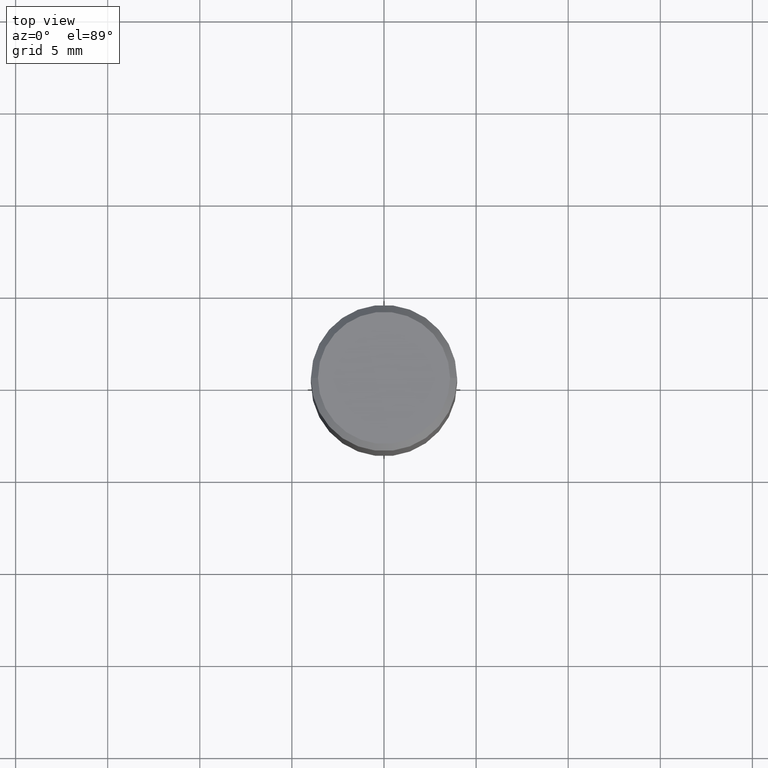
[diagram: clean part render]
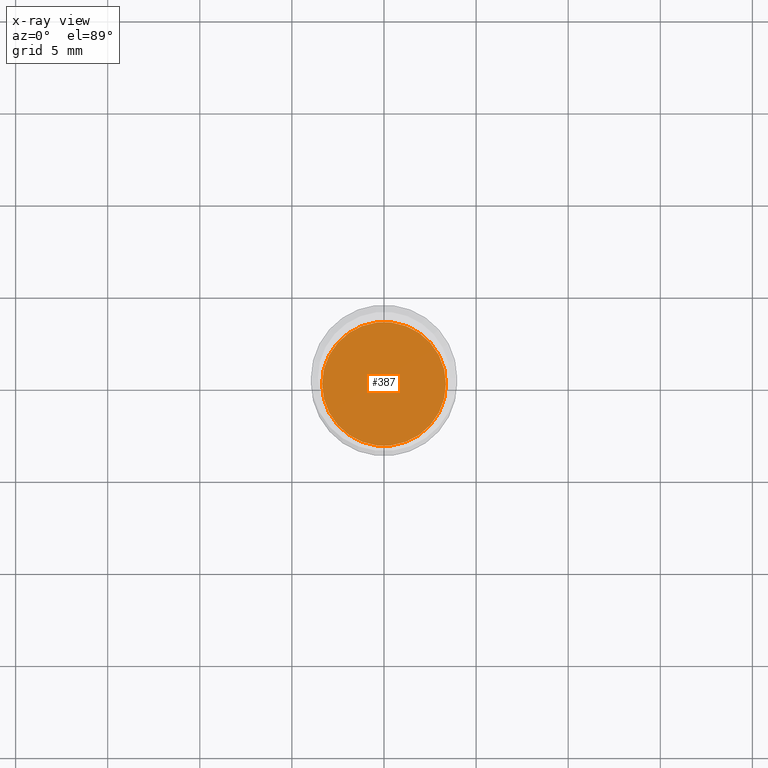
[diagram: x-ray — body ghosted, one internal face saturated and labeled with its STEP entity id]
A machine part, top view, then the same camera in x-ray: the body is ghosted and one INTERNAL B-rep face — a face not visible from any outside direction — is saturated and labeled: STEP entity #387.
In plain terms, the highlighted planar face has unit normal (-0, 0, 1).
Its self-contained STEP definition (entity closure, byte-faithful):
#38 = DIRECTION ( 'NONE',  ( -2.438088387897960049E-29, 3.491481338843145188E-15, 1.000000000000000000 ) ) ;
#42 = CARTESIAN_POINT ( 'NONE',  ( 0.1323000000000000009, -3.542456966390252304E-15, -0.7500000000000001110 ) ) ;
#55 = CIRCLE ( 'NONE', #241, 0.1323000000000000009 ) ;
#82 = VERTEX_POINT ( 'NONE', #164 ) ;
#109 = FACE_OUTER_BOUND ( 'NONE', #182, .T. ) ;
#119 = EDGE_CURVE ( 'NONE', #461, #82, #392, .T. ) ;
#151 = ORIENTED_EDGE ( 'NONE', *, *, #119, .F. ) ;
#164 = CARTESIAN_POINT ( 'NONE',  ( -0.1323000000000000009, -1.675913737547635335E-15, -0.7500000000000001110 ) ) ;
#168 = EDGE_CURVE ( 'NONE', #82, #461, #55, .T. ) ;
#182 = EDGE_LOOP ( 'NONE', ( #151, #436 ) ) ;
#184 = DIRECTION ( 'NONE',  ( 1.000000000000000000, -6.982962677686265922E-15, 4.876176775795935793E-29 ) ) ;
#200 = DIRECTION ( 'NONE',  ( 1.000000000000000000, -6.982962677686267499E-15, 0.000000000000000000 ) ) ;
#229 = CARTESIAN_POINT ( 'NONE',  ( 1.834101604638852448E-29, -2.618611004132359088E-15, -0.7500000000000001110 ) ) ;
#241 = AXIS2_PLACEMENT_3D ( 'NONE', #298, #420, #419 ) ;
#261 = AXIS2_PLACEMENT_3D ( 'NONE', #229, #459, #200 ) ;
#298 = CARTESIAN_POINT ( 'NONE',  ( 1.834101604638852448E-29, -2.618611004132359088E-15, -0.7500000000000001110 ) ) ;
#366 = PLANE ( 'NONE',  #418 ) ;
#387 = ADVANCED_FACE ( 'NONE', ( #109 ), #366, .F. ) ;
#392 = CIRCLE ( 'NONE', #261, 0.1323000000000000009 ) ;
#418 = AXIS2_PLACEMENT_3D ( 'NONE', #443, #38, #184 ) ;
#419 = DIRECTION ( 'NONE',  ( 1.000000000000000000, -6.982962677686267499E-15, 0.000000000000000000 ) ) ;
#420 = DIRECTION ( 'NONE',  ( -2.445468806185136597E-29, 3.491481338843145583E-15, 1.000000000000000000 ) ) ;
#436 = ORIENTED_EDGE ( 'NONE', *, *, #168, .F. ) ;
#443 = CARTESIAN_POINT ( 'NONE',  ( 1.834101604638852448E-29, -2.618611004132359088E-15, -0.7500000000000001110 ) ) ;
#459 = DIRECTION ( 'NONE',  ( -2.445468806185136597E-29, 3.491481338843145583E-15, 1.000000000000000000 ) ) ;
#461 = VERTEX_POINT ( 'NONE', #42 ) ;